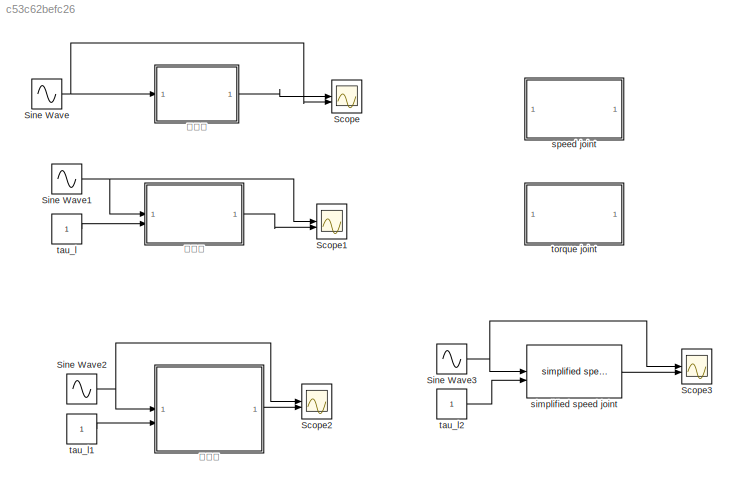
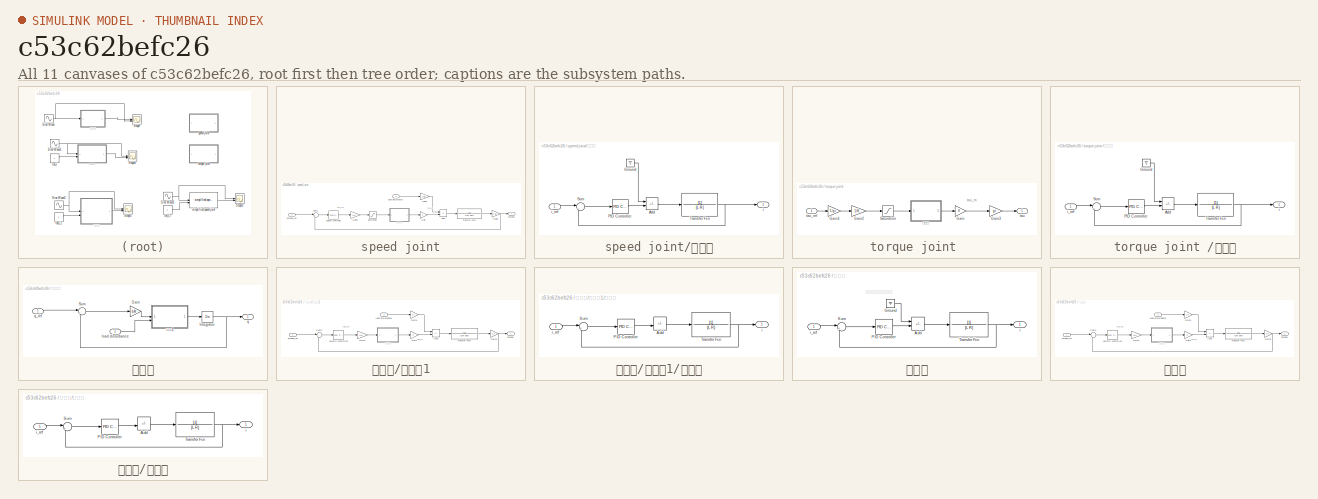
[diagram: thumbnail index - all 11 canvases of the model, root first then tree order]
MODEL slx_c53c62befc26
KIND model
CONFIG AbsTol = auto
CONFIG EnableMultiTasking = off
CONFIG FixedStep = auto
CONFIG MaxStep = auto
CONFIG MinStep = auto
CONFIG PostLoadFcn = motor_init
CONFIG RelTol = 1e-3
CONFIG SampleTimeConstraint = Unconstrained
CONFIG SolverName = VariableStepAuto
CONFIG StartTime = 0.0
CONFIG StopTime = 10
BLOCK [Scope] Scope
  ActiveDisplayYMaximum = 1.2475195119294937
  ActiveDisplayYMinimum = -1.2276779773030426
  Commented = on
  Floating = off
  GraphicalSettings = {"Style":{"BackgroundColor":[0.12941176470588237,0.12941176470588237,0.12941176470588237],"AxesColor":[0.07058823529411765,0.07058823529411765,0.07058823529411765],"LabelsColor":[0.8509803921568627,0.8509803921568627,0.8509803921568627],"PreserveColors":false,"Visible":[true,true],"LineStyle":["-","-"],"LineWidth":[1.5,1.5],"BarWidth":[0.9,0.9],"LineColor":["auto","auto"],"LineFaceAlpha":[1,1],"Li...<+2007ch>
  MultipleDisplayCache = [{"MaxYLimMag":1.2475195119294937,"MaxYLimReal":1.2475195119294937,"MinYLimMag":0,"MinYLimReal":-1.2276779773030426,"PlotAsMagnitudePhase":false,"ShowGrid":true,"ShowLegend":false,"Title":"%<SignalLabel>","YLabel":""}]
  NumInputPorts = 2
  ScopeFrameLocation = window
  WasSavedAsWebScope = on
  WindowPosition = [-1024.000000,36.000000,2048.000000,1081.000000,]
BLOCK [Scope] Scope1
  ActiveDisplayYMaximum = 1.2585028493199659
  ActiveDisplayYMinimum = -1.2585357304187803
  DataLoggingVariableName = ScopeData1
  Floating = off
  GraphicalSettings = {"Style":{"BackgroundColor":[0.12941176470588237,0.12941176470588237,0.12941176470588237],"AxesColor":[0.07058823529411765,0.07058823529411765,0.07058823529411765],"LabelsColor":[0.8509803921568627,0.8509803921568627,0.8509803921568627],"PreserveColors":false,"Visible":[true,true],"LineStyle":["-","-"],"LineWidth":[1.5,1.5],"BarWidth":[0.9,0.9],"LineColor":["auto","auto"],"LineFaceAlpha":[1,1],"Li...<+2009ch>
  MultipleDisplayCache = [{"MaxYLimMag":1.2585357304187803,"MaxYLimReal":1.2585028493199659,"MinYLimMag":0,"MinYLimReal":-1.2585357304187803,"PlotAsMagnitudePhase":false,"ShowGrid":true,"ShowLegend":false,"Title":"%<SignalLabel>","YLabel":""}]
  NumInputPorts = 2
  ScopeFrameLocation = window
  WasSavedAsWebScope = on
  WindowPosition = [-1516.000000,261.000000,560.000000,420.000000,]
BLOCK [Scope] Scope2
  ActiveDisplayYMaximum = 1.2499999999410674
  ActiveDisplayYMinimum = -1.2499999998940705
  Commented = on
  DataLoggingVariableName = ScopeData2
  Floating = off
  GraphicalSettings = {"Style":{"BackgroundColor":[0.12941176470588237,0.12941176470588237,0.12941176470588237],"AxesColor":[0.07058823529411765,0.07058823529411765,0.07058823529411765],"LabelsColor":[0.8509803921568627,0.8509803921568627,0.8509803921568627],"PreserveColors":false,"Visible":[true,true],"LineStyle":["-","-"],"LineWidth":[1.5,1.5],"BarWidth":[0.9,0.9],"LineColor":["auto","auto"],"LineFaceAlpha":[1,1],"Li...<+2111ch>
  MultipleDisplayCache = [{"MaxYLimMag":1.2499999999410674,"MaxYLimReal":1.2499999999410674,"MinYLimMag":0,"MinYLimReal":-1.2499999998940705,"PlotAsMagnitudePhase":false,"ShowGrid":true,"ShowLegend":false,"Title":"%<SignalLabel>","YLabel":""}]
  NumInputPorts = 2
  ScopeFrameLocation = window
  WasSavedAsWebScope = on
  WindowPosition = [1211.000000,380.000000,560.000000,420.000000,]
BLOCK [Scope] Scope3
  ActiveDisplayYMaximum = 1.2499999947116363
  ActiveDisplayYMinimum = -1.2499999980202072
  DataLoggingVariableName = ScopeData3
  Floating = off
  GraphicalSettings = {"Style":{"BackgroundColor":[0.12941176470588237,0.12941176470588237,0.12941176470588237],"AxesColor":[0.07058823529411765,0.07058823529411765,0.07058823529411765],"LabelsColor":[0.8509803921568627,0.8509803921568627,0.8509803921568627],"PreserveColors":false,"Visible":[true,true],"LineStyle":["-","-"],"LineWidth":[1.5,1.5],"BarWidth":[0.9,0.9],"LineColor":["auto","auto"],"LineFaceAlpha":[1,1],"Li...<+2047ch>
  MultipleDisplayCache = [{"MaxYLimMag":1.2499999980202072,"MaxYLimReal":1.2499999947116363,"MinYLimMag":0,"MinYLimReal":-1.2499999980202072,"PlotAsMagnitudePhase":false,"ShowGrid":true,"ShowLegend":false,"Title":"%<SignalLabel>","YLabel":""}]
  NumInputPorts = 2
  ScopeFrameLocation = window
  WasSavedAsWebScope = on
  WindowPosition = [-943.000000,262.000000,560.000000,420.000000,]
BLOCK [Sin] Sine Wave
  Commented = on
  Frequency = 2*pi*1000
  SampleTime = 0
BLOCK [Sin] Sine Wave1
  SampleTime = 0
BLOCK [Sin] Sine Wave2
  Commented = on
  SampleTime = 0
BLOCK [Sin] Sine Wave3
  SampleTime = 0
BLOCK [Reference] simplified speed joint  REF=my_library/simplified speed joint  (lib defined in slx_4b070192c2bc, slx_8dfaa4fb899d, +2 more)
  SourceBlock = my_library/simplified speed joint
  SourceProductName = MyLibrary
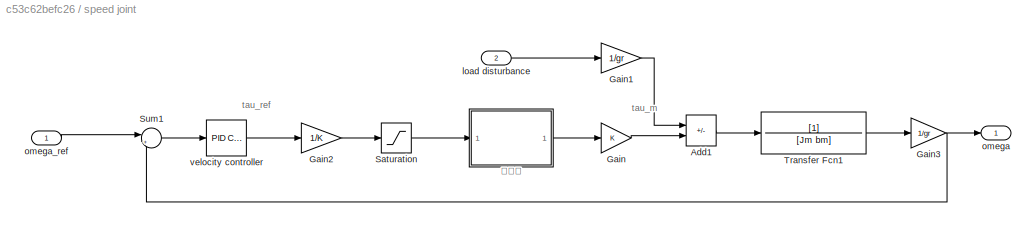
BLOCK [SubSystem] speed joint
  Commented = on
BLOCK [Sum] speed joint/Add1
  IconShape = rectangular
  Inputs = -+
BLOCK [Gain] speed joint/Gain
  Gain = K
BLOCK [Gain] speed joint/Gain1
  Gain = 1/gr
BLOCK [Gain] speed joint/Gain2
  Gain = 1/K
BLOCK [Gain] speed joint/Gain3
  Gain = 1/gr
BLOCK [Saturate] speed joint/Saturation
  Commented = through
  LowerLimit = -100
  UpperLimit = 100
BLOCK [Sum] speed joint/Sum1
  Inputs = |+-
BLOCK [TransferFcn] speed joint/Transfer Fcn1
  Denominator = [Jm bm]
BLOCK [Inport] speed joint/load disturbance
  Port = 2
BLOCK [Outport] speed joint/omega
BLOCK [Inport] speed joint/omega_ref
BLOCK [Reference] speed joint/velocity controller  REF=slpidlib/PID Controller
  SourceBlock = slpidlib/PID Controller
  SourceType = PID 1dof
BLOCK [SubSystem] speed joint/电流环
BLOCK [Sum] speed joint/电流环/Add
  IconShape = rectangular
  Inputs = -+
BLOCK [Ground] speed joint/电流环/Ground
BLOCK [Reference] speed joint/电流环/PID Controller  REF=slpidlib/PID Controller
  LibrarySourceBlock = simulink/Continuous/PID Controller
  SourceBlock = slpidlib/PID Controller
  SourceType = PID 1dof
BLOCK [Sum] speed joint/电流环/Sum
  Inputs = |+-
BLOCK [TransferFcn] speed joint/电流环/Transfer Fcn
  Denominator = [L R]
BLOCK [Outport] speed joint/电流环/i
BLOCK [Inport] speed joint/电流环/i_ref
BLOCK [Constant] tau_l
BLOCK [Constant] tau_l1
  Commented = on
BLOCK [Constant] tau_l2
BLOCK [SubSystem] torque joint 
  Commented = on
BLOCK [Gain] torque joint /Gain
  Gain = K
BLOCK [Gain] torque joint /Gain2
  Gain = 1/K
BLOCK [Gain] torque joint /Gain3
  Gain = gr
BLOCK [Gain] torque joint /Gain4
  Gain = 1/gr
BLOCK [Saturate] torque joint /Saturation
  Commented = through
  LowerLimit = -100
  UpperLimit = 100
BLOCK [Outport] torque joint /tau
BLOCK [Inport] torque joint /tau_ref
BLOCK [SubSystem] torque joint /电流环
BLOCK [Sum] torque joint /电流环/Add
  IconShape = rectangular
  Inputs = -+
BLOCK [Ground] torque joint /电流环/Ground
BLOCK [Reference] torque joint /电流环/PID Controller  REF=slpidlib/PID Controller
  LibrarySourceBlock = simulink/Continuous/PID Controller
  SourceBlock = slpidlib/PID Controller
  SourceType = PID 1dof
BLOCK [Sum] torque joint /电流环/Sum
  Inputs = |+-
BLOCK [TransferFcn] torque joint /电流环/Transfer Fcn
  Denominator = [L R]
BLOCK [Outport] torque joint /电流环/i
BLOCK [Inport] torque joint /电流环/i_ref
BLOCK [SubSystem] 位置环
  Commented = on
BLOCK [Gain] 位置环/Gain
  Gain = p_kp
BLOCK [Integrator] 位置环/Integrator
BLOCK [Sum] 位置环/Sum
  Inputs = |+-
BLOCK [Inport] 位置环/load disturbance
  Port = 2
BLOCK [Outport] 位置环/q
BLOCK [Inport] 位置环/q_ref
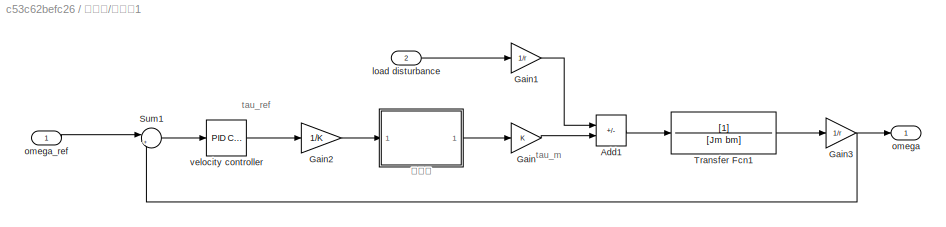
BLOCK [SubSystem] 位置环/速度环1
BLOCK [Sum] 位置环/速度环1/Add1
  IconShape = rectangular
  Inputs = -+
BLOCK [Gain] 位置环/速度环1/Gain
  Gain = K
BLOCK [Gain] 位置环/速度环1/Gain1
  Gain = 1/r
BLOCK [Gain] 位置环/速度环1/Gain2
  Gain = 1/K
BLOCK [Gain] 位置环/速度环1/Gain3
  Gain = 1/r
BLOCK [Sum] 位置环/速度环1/Sum1
  Inputs = |+-
BLOCK [TransferFcn] 位置环/速度环1/Transfer Fcn1
  Denominator = [Jm bm]
BLOCK [Inport] 位置环/速度环1/load disturbance
  Port = 2
BLOCK [Outport] 位置环/速度环1/omega
BLOCK [Inport] 位置环/速度环1/omega_ref
BLOCK [Reference] 位置环/速度环1/velocity controller  REF=slpidlib/PID Controller
  LibrarySourceBlock = simulink/Continuous/PID Controller
  SourceBlock = slpidlib/PID Controller
  SourceType = PID 1dof
BLOCK [SubSystem] 位置环/速度环1/电流环
BLOCK [Sum] 位置环/速度环1/电流环/Add
  IconShape = rectangular
  Inputs = -+
BLOCK [Reference] 位置环/速度环1/电流环/PID Controller  REF=slpidlib/PID Controller
  LibrarySourceBlock = simulink/Continuous/PID Controller
  SourceBlock = slpidlib/PID Controller
  SourceType = PID 1dof
BLOCK [Sum] 位置环/速度环1/电流环/Sum
  Inputs = |+-
BLOCK [TransferFcn] 位置环/速度环1/电流环/Transfer Fcn
  Denominator = [L R]
BLOCK [Outport] 位置环/速度环1/电流环/i
BLOCK [Inport] 位置环/速度环1/电流环/i_ref
BLOCK [SubSystem] 电流环
  Commented = on
BLOCK [Sum] 电流环/Add
  IconShape = rectangular
  Inputs = -+
BLOCK [Ground] 电流环/Ground
BLOCK [Reference] 电流环/PID Controller  REF=slpidlib/PID Controller
  LibrarySourceBlock = simulink/Continuous/PID Controller
  SourceBlock = slpidlib/PID Controller
  SourceType = PID 1dof
BLOCK [Sum] 电流环/Sum
  Inputs = |+-
BLOCK [TransferFcn] 电流环/Transfer Fcn
  Denominator = [L R]
BLOCK [Outport] 电流环/i
BLOCK [Inport] 电流环/i_ref
BLOCK [SubSystem] 速度环
BLOCK [Sum] 速度环/Add1
  IconShape = rectangular
  Inputs = -+
BLOCK [Gain] 速度环/Gain
  Gain = K
BLOCK [Gain] 速度环/Gain1
  Gain = 1/r
BLOCK [Gain] 速度环/Gain2
  Gain = 1/K
BLOCK [Gain] 速度环/Gain3
  Gain = 1/r
BLOCK [Sum] 速度环/Sum1
  Inputs = |+-
BLOCK [TransferFcn] 速度环/Transfer Fcn1
  Denominator = [Jm bm]
BLOCK [Inport] 速度环/load disturbance
  Port = 2
BLOCK [Outport] 速度环/omega
BLOCK [Inport] 速度环/omega_ref
BLOCK [Reference] 速度环/velocity controller  REF=slpidlib/PID Controller
  LibrarySourceBlock = simulink/Continuous/PID Controller
  SourceBlock = slpidlib/PID Controller
  SourceType = PID 1dof
BLOCK [SubSystem] 速度环/电流环
BLOCK [Sum] 速度环/电流环/Add
  IconShape = rectangular
  Inputs = -+
BLOCK [Reference] 速度环/电流环/PID Controller  REF=slpidlib/PID Controller
  LibrarySourceBlock = simulink/Continuous/PID Controller
  SourceBlock = slpidlib/PID Controller
  SourceType = PID 1dof
BLOCK [Sum] 速度环/电流环/Sum
  Inputs = |+-
BLOCK [TransferFcn] 速度环/电流环/Transfer Fcn
  Denominator = [L R]
BLOCK [Outport] 速度环/电流环/i
BLOCK [Inport] 速度环/电流环/i_ref
ANNOTATION speed joint: tau_m
ANNOTATION speed joint: tau_ref
ANNOTATION torque joint : tau_m
ANNOTATION 位置环/速度环1: tau_m
ANNOTATION 位置环/速度环1: tau_ref
ANNOTATION 电流环: 反电动势干扰被补偿
ANNOTATION 速度环: tau_m
ANNOTATION 速度环: tau_ref
NET Sine Wave1:1 -> Scope1:1, 速度环:1
NET Sine Wave2:1 -> Scope2:1, 位置环:1
NET Sine Wave3:1 -> Scope3:1, simplified speed joint:1
NET Sine Wave:1 -> Scope:2, 电流环:1
LINE simplified speed joint:1 -> Scope3:2
LINE speed joint/Add1:1 -> speed joint/Transfer Fcn1:1
LINE speed joint/Gain1:1 -> speed joint/Add1:1
LINE speed joint/Gain2:1 -> speed joint/Saturation:1
NET speed joint/Gain3:1 -> speed joint/Sum1:2, speed joint/omega:1
LINE speed joint/Gain:1 -> speed joint/Add1:2
LINE speed joint/Saturation:1 -> speed joint/电流环:1
LINE speed joint/Sum1:1 -> speed joint/velocity controller:1
LINE speed joint/Transfer Fcn1:1 -> speed joint/Gain3:1
LINE speed joint/load disturbance:1 -> speed joint/Gain1:1
LINE speed joint/omega_ref:1 -> speed joint/Sum1:1
LINE speed joint/velocity controller:1 -> speed joint/Gain2:1
LINE speed joint/电流环/Add:1 -> speed joint/电流环/Transfer Fcn:1
LINE speed joint/电流环/Ground:1 -> speed joint/电流环/Add:1
LINE speed joint/电流环/PID Controller:1 -> speed joint/电流环/Add:2
LINE speed joint/电流环/Sum:1 -> speed joint/电流环/PID Controller:1
NET speed joint/电流环/Transfer Fcn:1 -> speed joint/电流环/Sum:2, speed joint/电流环/i:1
LINE speed joint/电流环/i_ref:1 -> speed joint/电流环/Sum:1
LINE speed joint/电流环:1 -> speed joint/Gain:1
LINE tau_l1:1 -> 位置环:2
LINE tau_l2:1 -> simplified speed joint:2
LINE tau_l:1 -> 速度环:2
LINE torque joint /Gain2:1 -> torque joint /Saturation:1
LINE torque joint /Gain3:1 -> torque joint /tau:1
LINE torque joint /Gain4:1 -> torque joint /Gain2:1
LINE torque joint /Gain:1 -> torque joint /Gain3:1
LINE torque joint /Saturation:1 -> torque joint /电流环:1
LINE torque joint /tau_ref:1 -> torque joint /Gain4:1
LINE torque joint /电流环/Add:1 -> torque joint /电流环/Transfer Fcn:1
LINE torque joint /电流环/Ground:1 -> torque joint /电流环/Add:1
LINE torque joint /电流环/PID Controller:1 -> torque joint /电流环/Add:2
LINE torque joint /电流环/Sum:1 -> torque joint /电流环/PID Controller:1
NET torque joint /电流环/Transfer Fcn:1 -> torque joint /电流环/Sum:2, torque joint /电流环/i:1
LINE torque joint /电流环/i_ref:1 -> torque joint /电流环/Sum:1
LINE torque joint /电流环:1 -> torque joint /Gain:1
LINE 位置环/Gain:1 -> 位置环/速度环1:1
NET 位置环/Integrator:1 -> 位置环/Sum:2, 位置环/q:1
LINE 位置环/Sum:1 -> 位置环/Gain:1
LINE 位置环/load disturbance:1 -> 位置环/速度环1:2
LINE 位置环/q_ref:1 -> 位置环/Sum:1
LINE 位置环/速度环1/Add1:1 -> 位置环/速度环1/Transfer Fcn1:1
LINE 位置环/速度环1/Gain1:1 -> 位置环/速度环1/Add1:1
LINE 位置环/速度环1/Gain2:1 -> 位置环/速度环1/电流环:1
NET 位置环/速度环1/Gain3:1 -> 位置环/速度环1/Sum1:2, 位置环/速度环1/omega:1
LINE 位置环/速度环1/Gain:1 -> 位置环/速度环1/Add1:2
LINE 位置环/速度环1/Sum1:1 -> 位置环/速度环1/velocity controller:1
LINE 位置环/速度环1/Transfer Fcn1:1 -> 位置环/速度环1/Gain3:1
LINE 位置环/速度环1/load disturbance:1 -> 位置环/速度环1/Gain1:1
LINE 位置环/速度环1/omega_ref:1 -> 位置环/速度环1/Sum1:1
LINE 位置环/速度环1/velocity controller:1 -> 位置环/速度环1/Gain2:1
LINE 位置环/速度环1/电流环/Add:1 -> 位置环/速度环1/电流环/Transfer Fcn:1
LINE 位置环/速度环1/电流环/PID Controller:1 -> 位置环/速度环1/电流环/Add:2
LINE 位置环/速度环1/电流环/Sum:1 -> 位置环/速度环1/电流环/PID Controller:1
NET 位置环/速度环1/电流环/Transfer Fcn:1 -> 位置环/速度环1/电流环/Sum:2, 位置环/速度环1/电流环/i:1
LINE 位置环/速度环1/电流环/i_ref:1 -> 位置环/速度环1/电流环/Sum:1
LINE 位置环/速度环1/电流环:1 -> 位置环/速度环1/Gain:1
LINE 位置环/速度环1:1 -> 位置环/Integrator:1
LINE 位置环:1 -> Scope2:2
LINE 电流环/Add:1 -> 电流环/Transfer Fcn:1
LINE 电流环/Ground:1 -> 电流环/Add:1
LINE 电流环/PID Controller:1 -> 电流环/Add:2
LINE 电流环/Sum:1 -> 电流环/PID Controller:1
NET 电流环/Transfer Fcn:1 -> 电流环/Sum:2, 电流环/i:1
LINE 电流环/i_ref:1 -> 电流环/Sum:1
LINE 电流环:1 -> Scope:1
LINE 速度环/Add1:1 -> 速度环/Transfer Fcn1:1
LINE 速度环/Gain1:1 -> 速度环/Add1:1
LINE 速度环/Gain2:1 -> 速度环/电流环:1
NET 速度环/Gain3:1 -> 速度环/Sum1:2, 速度环/omega:1
LINE 速度环/Gain:1 -> 速度环/Add1:2
LINE 速度环/Sum1:1 -> 速度环/velocity controller:1
LINE 速度环/Transfer Fcn1:1 -> 速度环/Gain3:1
LINE 速度环/load disturbance:1 -> 速度环/Gain1:1
LINE 速度环/omega_ref:1 -> 速度环/Sum1:1
LINE 速度环/velocity controller:1 -> 速度环/Gain2:1
LINE 速度环/电流环/Add:1 -> 速度环/电流环/Transfer Fcn:1
LINE 速度环/电流环/PID Controller:1 -> 速度环/电流环/Add:2
LINE 速度环/电流环/Sum:1 -> 速度环/电流环/PID Controller:1
NET 速度环/电流环/Transfer Fcn:1 -> 速度环/电流环/Sum:2, 速度环/电流环/i:1
LINE 速度环/电流环/i_ref:1 -> 速度环/电流环/Sum:1
LINE 速度环/电流环:1 -> 速度环/Gain:1
LINE 速度环:1 -> Scope1:2
note: NET lines group one-source signal fan-out (src -> all destinations, sorted); 1:1 wires keep LINE
